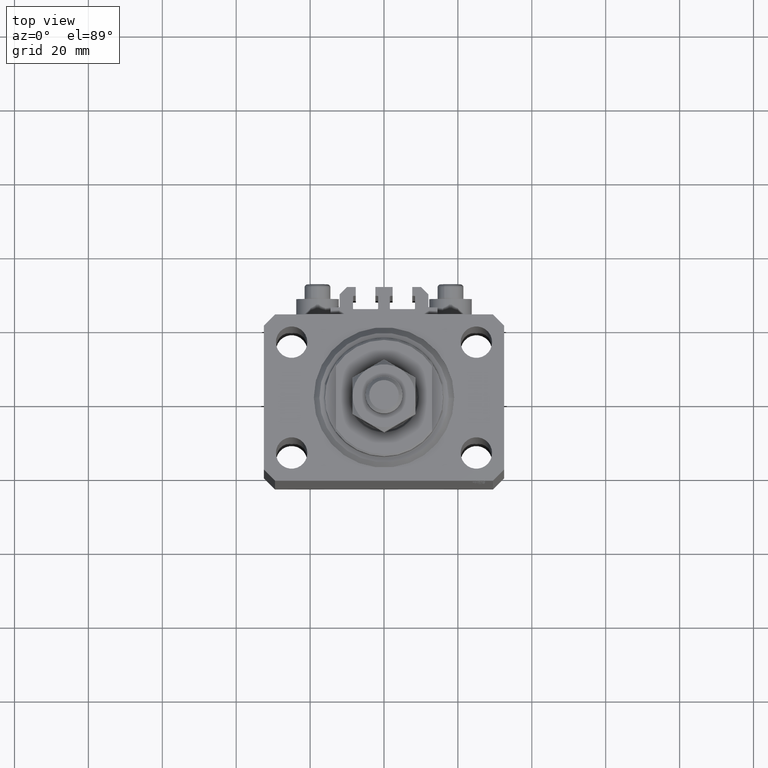
[diagram: clean part render]
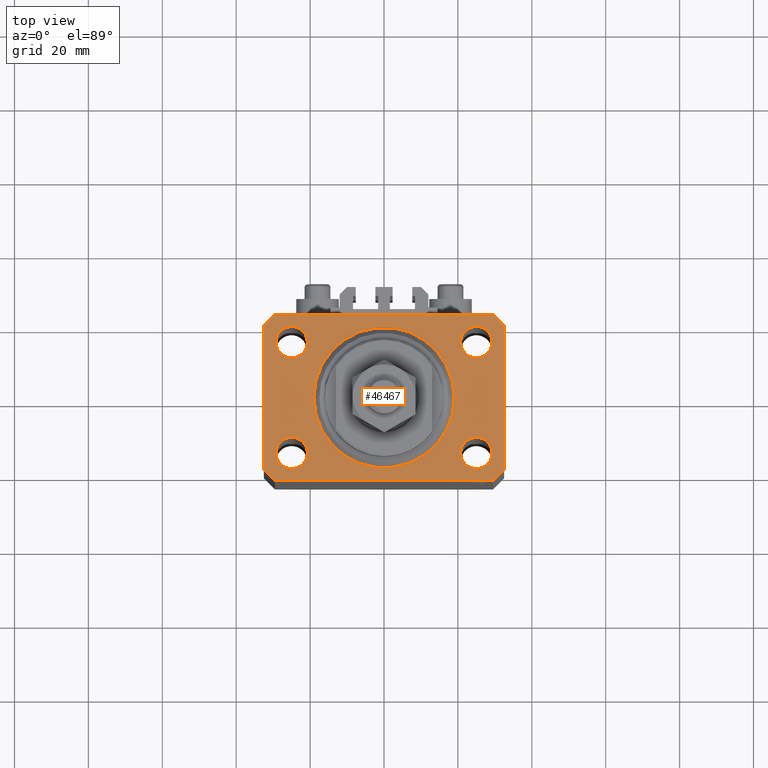
[diagram: same view with one face highlighted and labeled with its STEP entity id]
A machine part, top view. The second image highlights one B-rep face of the part: STEP entity #46467.
In plain terms, the highlighted planar face has unit normal (0, 0, 1).
Its self-contained STEP definition (entity closure, byte-faithful):
#43 = VERTEX_POINT ( 'NONE', #25520 ) ;
#145 = VECTOR ( 'NONE', #48706, 1000.000000000000000 ) ;
#542 = DIRECTION ( 'NONE',  ( 0.000000000000000000, 0.000000000000000000, 1.000000000000000000 ) ) ;
#792 = CARTESIAN_POINT ( 'NONE',  ( -29.49999999999650413, 22.49999999999949907, 0.000000000000000000 ) ) ;
#1069 = CARTESIAN_POINT ( 'NONE',  ( -19.00000000000000000, 2.326828918379970970E-15, 0.000000000000000000 ) ) ;
#1146 = EDGE_CURVE ( 'NONE', #45297, #42318, #35918, .T. ) ;
#1269 = CARTESIAN_POINT ( 'NONE',  ( -29.49999999999650413, 22.49999999999949907, 0.000000000000000000 ) ) ;
#1935 = AXIS2_PLACEMENT_3D ( 'NONE', #39963, #40696, #17219 ) ;
#1959 = EDGE_LOOP ( 'NONE', ( #24113, #17276 ) ) ;
#2143 = FACE_BOUND ( 'NONE', #44058, .T. ) ;
#2163 = DIRECTION ( 'NONE',  ( 1.000000000000000000, 0.000000000000000000, 0.000000000000000000 ) ) ;
#2192 = DIRECTION ( 'NONE',  ( 1.000000000000000000, 0.000000000000000000, 0.000000000000000000 ) ) ;
#2216 = LINE ( 'NONE', #44236, #44875 ) ;
#2468 = DIRECTION ( 'NONE',  ( 0.7071067811865474617, -0.7071067811865474617, 0.000000000000000000 ) ) ;
#3054 = AXIS2_PLACEMENT_3D ( 'NONE', #13549, #43440, #2163 ) ;
#3679 = EDGE_CURVE ( 'NONE', #12216, #15014, #29090, .T. ) ;
#4225 = LINE ( 'NONE', #31141, #44467 ) ;
#5134 = FACE_BOUND ( 'NONE', #33871, .T. ) ;
#5374 = DIRECTION ( 'NONE',  ( 0.000000000000000000, 0.000000000000000000, 1.000000000000000000 ) ) ;
#5501 = EDGE_CURVE ( 'NONE', #22674, #24849, #8641, .T. ) ;
#5505 = AXIS2_PLACEMENT_3D ( 'NONE', #31055, #34524, #27115 ) ;
#5622 = VERTEX_POINT ( 'NONE', #31307 ) ;
#6158 = EDGE_CURVE ( 'NONE', #15014, #12216, #33148, .T. ) ;
#6391 = ORIENTED_EDGE ( 'NONE', *, *, #46093, .T. ) ;
#6839 = VERTEX_POINT ( 'NONE', #11435 ) ;
#7382 = CARTESIAN_POINT ( 'NONE',  ( 32.49999999999702993, 19.49999999999945999, 0.000000000000000000 ) ) ;
#7581 = EDGE_CURVE ( 'NONE', #42318, #8067, #27478, .T. ) ;
#7810 = EDGE_CURVE ( 'NONE', #8067, #22162, #33377, .T. ) ;
#7824 = CIRCLE ( 'NONE', #30682, 4.250000000040370374 ) ;
#7841 = ORIENTED_EDGE ( 'NONE', *, *, #7810, .T. ) ;
#8067 = VERTEX_POINT ( 'NONE', #32342 ) ;
#8113 = DIRECTION ( 'NONE',  ( 1.000000000000000000, 0.000000000000000000, 0.000000000000000000 ) ) ;
#8641 = CIRCLE ( 'NONE', #17339, 4.250000000040370374 ) ;
#8736 = EDGE_CURVE ( 'NONE', #43952, #5622, #36683, .T. ) ;
#8872 = CARTESIAN_POINT ( 'NONE',  ( 19.00000000000000000, 0.000000000000000000, 0.000000000000000000 ) ) ;
#9281 = VECTOR ( 'NONE', #43083, 1000.000000000000000 ) ;
#9320 = AXIS2_PLACEMENT_3D ( 'NONE', #29890, #18768, #34335 ) ;
#10651 = ORIENTED_EDGE ( 'NONE', *, *, #15931, .T. ) ;
#11435 = CARTESIAN_POINT ( 'NONE',  ( 32.49999999999702993, 19.49999999999945999, 0.000000000000000000 ) ) ;
#11914 = ORIENTED_EDGE ( 'NONE', *, *, #16160, .F. ) ;
#12216 = VERTEX_POINT ( 'NONE', #1069 ) ;
#12796 = DIRECTION ( 'NONE',  ( 0.000000000000000000, 0.000000000000000000, 1.000000000000000000 ) ) ;
#12923 = ORIENTED_EDGE ( 'NONE', *, *, #22713, .F. ) ;
#13507 = ORIENTED_EDGE ( 'NONE', *, *, #7581, .T. ) ;
#13549 = CARTESIAN_POINT ( 'NONE',  ( 0.000000000000000000, 0.000000000000000000, 0.000000000000000000 ) ) ;
#14453 = CIRCLE ( 'NONE', #27087, 4.250000000021375790 ) ;
#15014 = VERTEX_POINT ( 'NONE', #8872 ) ;
#15519 = VERTEX_POINT ( 'NONE', #32172 ) ;
#15931 = EDGE_CURVE ( 'NONE', #6839, #45297, #33590, .T. ) ;
#16073 = DIRECTION ( 'NONE',  ( 1.000000000000000000, 1.176083712526788232E-16, 0.000000000000000000 ) ) ;
#16095 = CARTESIAN_POINT ( 'NONE',  ( 25.00000000000000000, 14.99999999999999289, 0.000000000000000000 ) ) ;
#16160 = EDGE_CURVE ( 'NONE', #27901, #15519, #47733, .T. ) ;
#16307 = LINE ( 'NONE', #42039, #32014 ) ;
#16899 = ORIENTED_EDGE ( 'NONE', *, *, #3679, .F. ) ;
#16996 = CARTESIAN_POINT ( 'NONE',  ( -20.74999999995962341, -15.00000000000000355, 0.000000000000000000 ) ) ;
#17219 = DIRECTION ( 'NONE',  ( 1.000000000000000000, 0.000000000000000000, 0.000000000000000000 ) ) ;
#17276 = ORIENTED_EDGE ( 'NONE', *, *, #26150, .F. ) ;
#17339 = AXIS2_PLACEMENT_3D ( 'NONE', #36054, #31847, #35810 ) ;
#17744 = AXIS2_PLACEMENT_3D ( 'NONE', #27872, #12796, #31816 ) ;
#18012 = CARTESIAN_POINT ( 'NONE',  ( 29.49999999999707967, 22.49999999999952038, 0.000000000000000000 ) ) ;
#18132 = CARTESIAN_POINT ( 'NONE',  ( 29.49999999999650413, -22.49999999999949196, 0.000000000000000000 ) ) ;
#18335 = ORIENTED_EDGE ( 'NONE', *, *, #8736, .T. ) ;
#18768 = DIRECTION ( 'NONE',  ( 0.000000000000000000, 0.000000000000000000, 1.000000000000000000 ) ) ;
#18925 = EDGE_CURVE ( 'NONE', #34543, #43952, #16307, .T. ) ;
#19102 = ORIENTED_EDGE ( 'NONE', *, *, #6158, .F. ) ;
#19198 = CARTESIAN_POINT ( 'NONE',  ( 20.75000000002367884, -15.00000000000000355, 0.000000000000000000 ) ) ;
#19505 = ORIENTED_EDGE ( 'NONE', *, *, #1146, .T. ) ;
#21177 = DIRECTION ( 'NONE',  ( 0.000000000000000000, 0.000000000000000000, 1.000000000000000000 ) ) ;
#22162 = VERTEX_POINT ( 'NONE', #41607 ) ;
#22674 = VERTEX_POINT ( 'NONE', #16996 ) ;
#22713 = EDGE_CURVE ( 'NONE', #32873, #45247, #43984, .T. ) ;
#22722 = CARTESIAN_POINT ( 'NONE',  ( -29.25000000004036593, -15.00000000000000355, 0.000000000000000000 ) ) ;
#23200 = CARTESIAN_POINT ( 'NONE',  ( -24.99999999999999289, -15.00000000000000355, 0.000000000000000000 ) ) ;
#23542 = CARTESIAN_POINT ( 'NONE',  ( -29.25000000002137668, 14.99999999999999645, 0.000000000000000000 ) ) ;
#23703 = VECTOR ( 'NONE', #38848, 1000.000000000000114 ) ;
#24113 = ORIENTED_EDGE ( 'NONE', *, *, #5501, .F. ) ;
#24525 = EDGE_LOOP ( 'NONE', ( #35349, #44867 ) ) ;
#24581 = VECTOR ( 'NONE', #40390, 1000.000000000000000 ) ;
#24849 = VERTEX_POINT ( 'NONE', #22722 ) ;
#25399 = ORIENTED_EDGE ( 'NONE', *, *, #28654, .F. ) ;
#25520 = CARTESIAN_POINT ( 'NONE',  ( -20.74999999997862687, 14.99999999999999645, 0.000000000000000000 ) ) ;
#26150 = EDGE_CURVE ( 'NONE', #24849, #22674, #7824, .T. ) ;
#27087 = AXIS2_PLACEMENT_3D ( 'NONE', #36062, #32603, #2192 ) ;
#27115 = DIRECTION ( 'NONE',  ( 1.000000000000000000, 0.000000000000000000, 0.000000000000000000 ) ) ;
#27181 = CIRCLE ( 'NONE', #1935, 4.250000000021375790 ) ;
#27230 = ORIENTED_EDGE ( 'NONE', *, *, #28566, .T. ) ;
#27436 = DIRECTION ( 'NONE',  ( 1.334402673828349134E-14, 1.000000000000000000, 0.000000000000000000 ) ) ;
#27478 = LINE ( 'NONE', #1269, #23703 ) ;
#27872 = CARTESIAN_POINT ( 'NONE',  ( 24.99999999999999289, -15.00000000000000355, 0.000000000000000000 ) ) ;
#27901 = VERTEX_POINT ( 'NONE', #19198 ) ;
#28247 = CARTESIAN_POINT ( 'NONE',  ( 29.49999999999707967, 22.49999999999952038, 0.000000000000000000 ) ) ;
#28566 = EDGE_CURVE ( 'NONE', #22162, #34543, #2216, .T. ) ;
#28654 = EDGE_CURVE ( 'NONE', #15519, #27901, #46418, .T. ) ;
#28849 = FACE_BOUND ( 'NONE', #1959, .T. ) ;
#29090 = CIRCLE ( 'NONE', #3054, 19.00000000000000000 ) ;
#29687 = EDGE_CURVE ( 'NONE', #45247, #32873, #29904, .T. ) ;
#29827 = DIRECTION ( 'NONE',  ( 1.000000000000000000, 0.000000000000000000, 0.000000000000000000 ) ) ;
#29890 = CARTESIAN_POINT ( 'NONE',  ( 24.99999999999999289, -15.00000000000000355, 0.000000000000000000 ) ) ;
#29904 = CIRCLE ( 'NONE', #30679, 4.249999999957291053 ) ;
#30453 = DIRECTION ( 'NONE',  ( 1.000000000000000000, 0.000000000000000000, 0.000000000000000000 ) ) ;
#30679 = AXIS2_PLACEMENT_3D ( 'NONE', #16095, #542, #30453 ) ;
#30682 = AXIS2_PLACEMENT_3D ( 'NONE', #23200, #42699, #8113 ) ;
#31055 = CARTESIAN_POINT ( 'NONE',  ( 0.000000000000000000, 0.000000000000000000, 0.000000000000000000 ) ) ;
#31141 = CARTESIAN_POINT ( 'NONE',  ( 32.49999999999651124, -19.49999999999949196, 0.000000000000000000 ) ) ;
#31307 = CARTESIAN_POINT ( 'NONE',  ( 32.49999999999651124, -19.49999999999949196, 0.000000000000000000 ) ) ;
#31816 = DIRECTION ( 'NONE',  ( 1.000000000000000000, 0.000000000000000000, 0.000000000000000000 ) ) ;
#31847 = DIRECTION ( 'NONE',  ( 0.000000000000000000, 0.000000000000000000, 1.000000000000000000 ) ) ;
#32014 = VECTOR ( 'NONE', #16073, 1000.000000000000000 ) ;
#32172 = CARTESIAN_POINT ( 'NONE',  ( 29.24999999997631051, -15.00000000000000355, 0.000000000000000000 ) ) ;
#32342 = CARTESIAN_POINT ( 'NONE',  ( -32.49999999999650413, 19.49999999999949907, 0.000000000000000000 ) ) ;
#32603 = DIRECTION ( 'NONE',  ( 0.000000000000000000, 0.000000000000000000, 1.000000000000000000 ) ) ;
#32873 = VERTEX_POINT ( 'NONE', #38758 ) ;
#32915 = AXIS2_PLACEMENT_3D ( 'NONE', #39241, #5374, #29827 ) ;
#33148 = CIRCLE ( 'NONE', #5505, 19.00000000000000000 ) ;
#33377 = LINE ( 'NONE', #37087, #145 ) ;
#33590 = LINE ( 'NONE', #7382, #37435 ) ;
#33871 = EDGE_LOOP ( 'NONE', ( #12923, #44672 ) ) ;
#34278 = AXIS2_PLACEMENT_3D ( 'NONE', #39237, #21177, #35279 ) ;
#34335 = DIRECTION ( 'NONE',  ( 1.000000000000000000, 0.000000000000000000, 0.000000000000000000 ) ) ;
#34524 = DIRECTION ( 'NONE',  ( 0.000000000000000000, 0.000000000000000000, 1.000000000000000000 ) ) ;
#34543 = VERTEX_POINT ( 'NONE', #46059 ) ;
#35279 = DIRECTION ( 'NONE',  ( 1.000000000000000000, 0.000000000000000000, -0.000000000000000000 ) ) ;
#35349 = ORIENTED_EDGE ( 'NONE', *, *, #45229, .F. ) ;
#35810 = DIRECTION ( 'NONE',  ( 1.000000000000000000, 0.000000000000000000, 0.000000000000000000 ) ) ;
#35918 = LINE ( 'NONE', #28247, #9281 ) ;
#36018 = FACE_OUTER_BOUND ( 'NONE', #44023, .T. ) ;
#36054 = CARTESIAN_POINT ( 'NONE',  ( -24.99999999999999289, -15.00000000000000355, 0.000000000000000000 ) ) ;
#36062 = CARTESIAN_POINT ( 'NONE',  ( -25.00000000000000000, 14.99999999999999645, 0.000000000000000000 ) ) ;
#36683 = LINE ( 'NONE', #18132, #24581 ) ;
#36804 = CARTESIAN_POINT ( 'NONE',  ( 20.75000000004271072, 14.99999999999999289, 0.000000000000000000 ) ) ;
#37087 = CARTESIAN_POINT ( 'NONE',  ( -32.49999999999650413, 19.49999999999949907, 0.000000000000000000 ) ) ;
#37435 = VECTOR ( 'NONE', #37793, 1000.000000000000000 ) ;
#37793 = DIRECTION ( 'NONE',  ( -0.7071067811865344721, 0.7071067811865606734, 0.000000000000000000 ) ) ;
#38758 = CARTESIAN_POINT ( 'NONE',  ( 29.24999999995729283, 14.99999999999999289, 0.000000000000000000 ) ) ;
#38848 = DIRECTION ( 'NONE',  ( -0.7071067811865474617, -0.7071067811865474617, 0.000000000000000000 ) ) ;
#39231 = CARTESIAN_POINT ( 'NONE',  ( 29.49999999999650413, -22.49999999999949196, 0.000000000000000000 ) ) ;
#39237 = CARTESIAN_POINT ( 'NONE',  ( 0.000000000000000000, 0.000000000000000000, 0.000000000000000000 ) ) ;
#39241 = CARTESIAN_POINT ( 'NONE',  ( 25.00000000000000000, 14.99999999999999289, 0.000000000000000000 ) ) ;
#39480 = FACE_BOUND ( 'NONE', #24525, .T. ) ;
#39963 = CARTESIAN_POINT ( 'NONE',  ( -25.00000000000000000, 14.99999999999999645, 0.000000000000000000 ) ) ;
#40351 = EDGE_LOOP ( 'NONE', ( #19102, #16899 ) ) ;
#40390 = DIRECTION ( 'NONE',  ( 0.7071067811865483499, 0.7071067811865466846, 0.000000000000000000 ) ) ;
#40696 = DIRECTION ( 'NONE',  ( 0.000000000000000000, 0.000000000000000000, 1.000000000000000000 ) ) ;
#41607 = CARTESIAN_POINT ( 'NONE',  ( -32.49999999999650413, -19.49999999999949907, 0.000000000000000000 ) ) ;
#42039 = CARTESIAN_POINT ( 'NONE',  ( -29.49999999999650413, -22.49999999999949907, 0.000000000000000000 ) ) ;
#42318 = VERTEX_POINT ( 'NONE', #792 ) ;
#42699 = DIRECTION ( 'NONE',  ( 0.000000000000000000, 0.000000000000000000, 1.000000000000000000 ) ) ;
#43083 = DIRECTION ( 'NONE',  ( -1.000000000000000000, -3.528251137580330676E-16, 0.000000000000000000 ) ) ;
#43440 = DIRECTION ( 'NONE',  ( 0.000000000000000000, 0.000000000000000000, 1.000000000000000000 ) ) ;
#43676 = FACE_BOUND ( 'NONE', #40351, .T. ) ;
#43952 = VERTEX_POINT ( 'NONE', #39231 ) ;
#43984 = CIRCLE ( 'NONE', #32915, 4.249999999957291053 ) ;
#44023 = EDGE_LOOP ( 'NONE', ( #19505, #13507, #7841, #27230, #46948, #18335, #6391, #10651 ) ) ;
#44058 = EDGE_LOOP ( 'NONE', ( #25399, #11914 ) ) ;
#44236 = CARTESIAN_POINT ( 'NONE',  ( -32.49999999999650413, -19.49999999999949907, 0.000000000000000000 ) ) ;
#44467 = VECTOR ( 'NONE', #27436, 1000.000000000000000 ) ;
#44672 = ORIENTED_EDGE ( 'NONE', *, *, #29687, .F. ) ;
#44867 = ORIENTED_EDGE ( 'NONE', *, *, #47587, .F. ) ;
#44875 = VECTOR ( 'NONE', #2468, 1000.000000000000114 ) ;
#44952 = VERTEX_POINT ( 'NONE', #23542 ) ;
#45229 = EDGE_CURVE ( 'NONE', #43, #44952, #14453, .T. ) ;
#45247 = VERTEX_POINT ( 'NONE', #36804 ) ;
#45297 = VERTEX_POINT ( 'NONE', #18012 ) ;
#46059 = CARTESIAN_POINT ( 'NONE',  ( -29.49999999999650413, -22.49999999999949907, 0.000000000000000000 ) ) ;
#46093 = EDGE_CURVE ( 'NONE', #5622, #6839, #4225, .T. ) ;
#46418 = CIRCLE ( 'NONE', #9320, 4.249999999976314058 ) ;
#46467 = ADVANCED_FACE ( 'NONE', ( #43676, #28849, #2143, #5134, #39480, #36018 ), #47388, .T. ) ;
#46948 = ORIENTED_EDGE ( 'NONE', *, *, #18925, .T. ) ;
#47388 = PLANE ( 'NONE',  #34278 ) ;
#47587 = EDGE_CURVE ( 'NONE', #44952, #43, #27181, .T. ) ;
#47733 = CIRCLE ( 'NONE', #17744, 4.249999999976314058 ) ;
#48706 = DIRECTION ( 'NONE',  ( 0.000000000000000000, -1.000000000000000000, 0.000000000000000000 ) ) ;